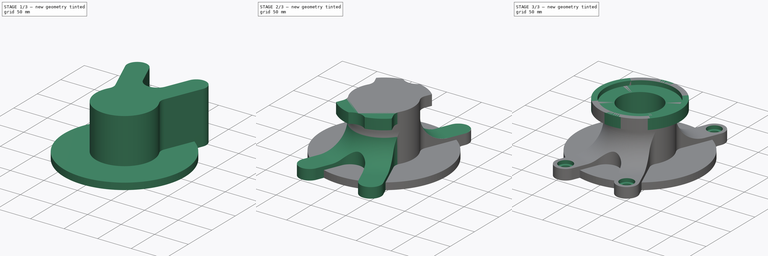
[diagram: build sequence overview — one tinted view per stage of 3, left to right]
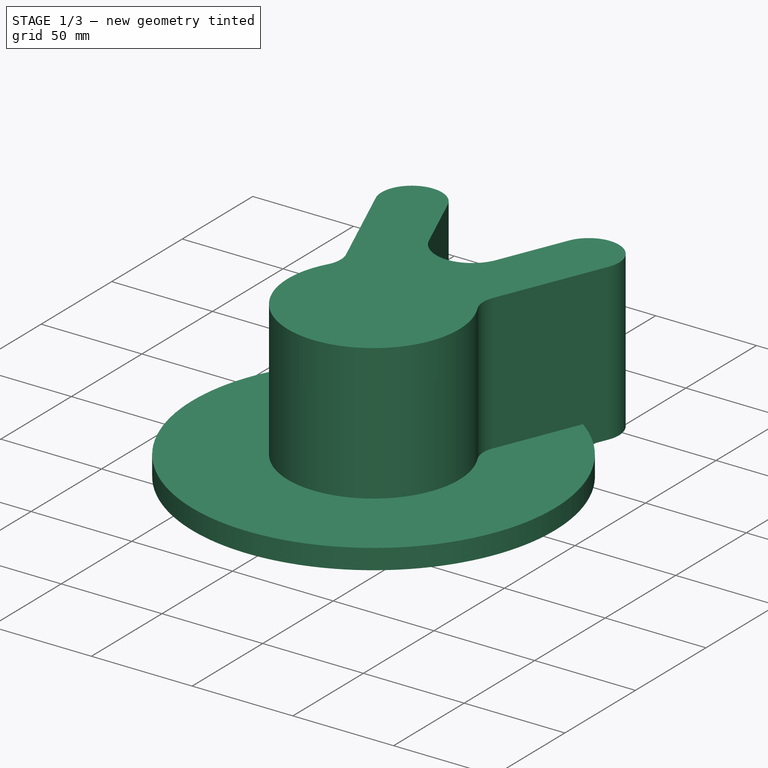
[diagram: stage 1 of 3 — iso view after this stage's code; geometry added in this stage tinted green]
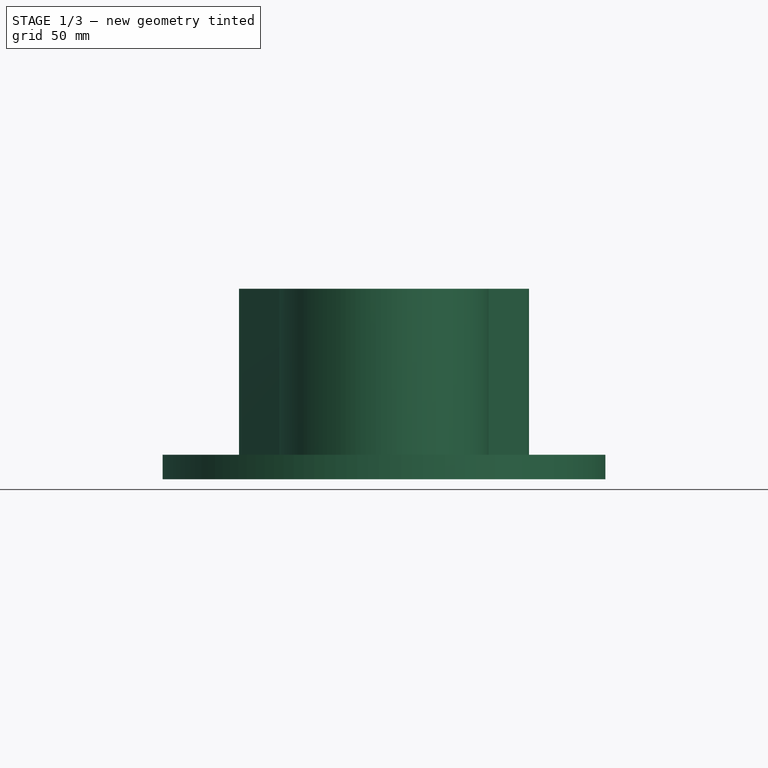
[diagram: stage 1 of 3 — front view after this stage's code; geometry added in this stage tinted green]
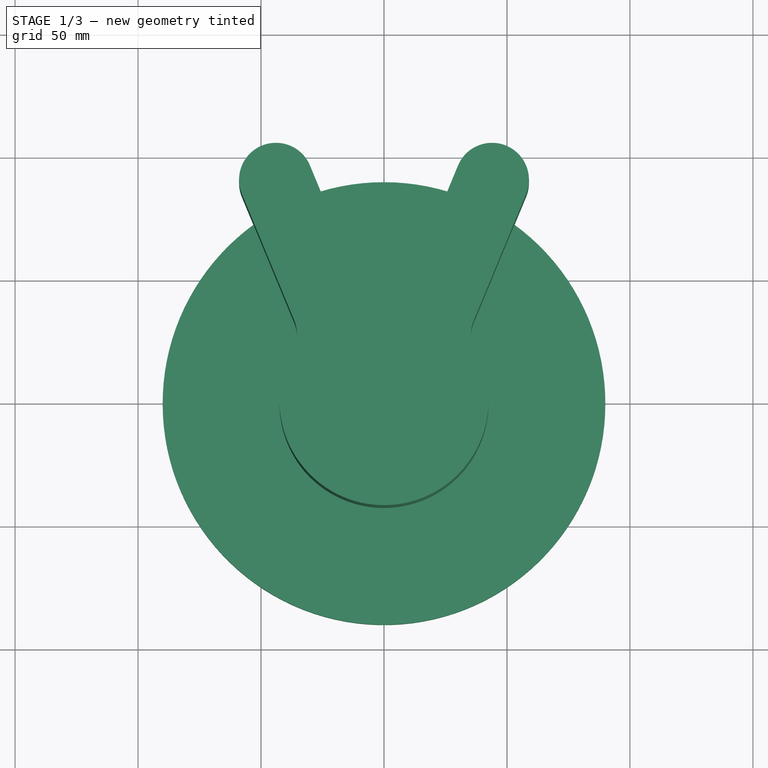
[diagram: stage 1 of 3 — top view after this stage's code; geometry added in this stage tinted green]
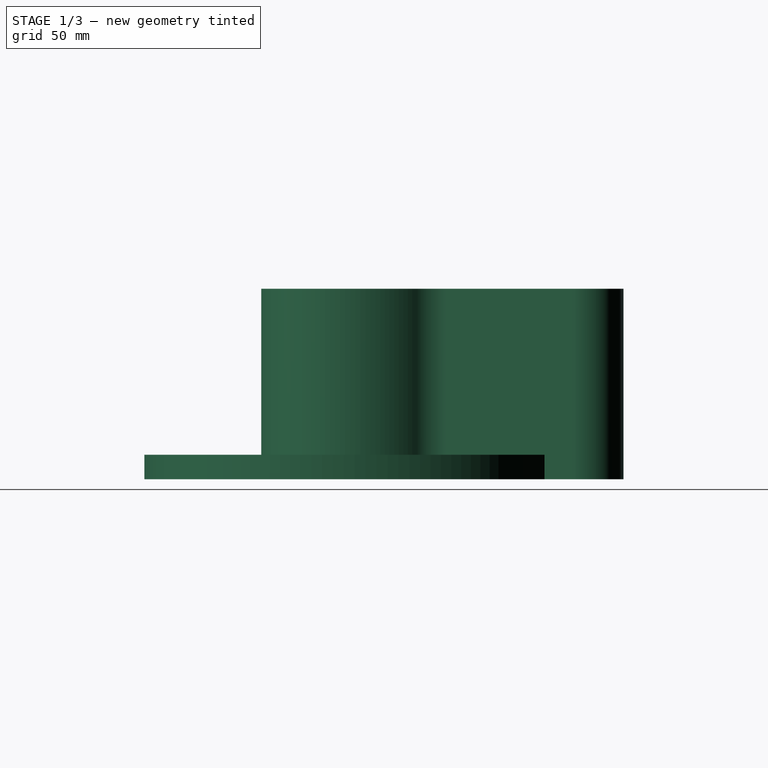
[diagram: stage 1 of 3 — right view after this stage's code; geometry added in this stage tinted green]
FCSTD DOCUMENT  (FreeCAD 1.1R42180 (Git))
Label: 2024-04-15-Reducer
License: Creative Commons Attribution-NonCommercial-ShareAlike 4.0
LicenseURL: https://creativecommons.org/licenses/by-nc-sa/4.0/
objects: Sketcher::SketchObject×4, PartDesign::Pad×4, PartDesign::Hole×2, App::Point×1, PartDesign::Mirrored×1, PartDesign::Groove×1, PartDesign::Body×1
note: 32 computed .brp shape members not serialized (recipe doc carries the construction recipe); baked Part::Feature solids carry a one-line shape summary decoded from their .brp

FEATURE [App::Point] Origin001  label="Origine"
  Role = Origin
FEATURE [Sketcher::SketchObject] Sketch
  ArcFitTolerance = 1e-06
  AttachmentSupport = -> [Origin]
  ExternalTypes = [0]
  FullyConstrained = true
  MakeInternals = false
  MapMode = 5
  sketch-geometry (2):
    g0: Circle CenterX=0 CenterY=0 CenterZ=0 NormalX=0 NormalY=0 NormalZ=1 AngleXU=0 Radius=90
    g1: Circle CenterX=0 CenterY=0 CenterZ=0 NormalX=0 NormalY=0 NormalZ=1 AngleXU=0 Radius=42.5
  constraints (4):
    c: Diameter(g0) = 180
    c: Coincident(g0,g-1)
    c: Diameter(g1) = 85
    c: Coincident(g1,g0)
FEATURE [Sketcher::SketchObject] Sketch001
  ArcFitTolerance = 1e-06
  AttachmentSupport = -> [Origin]
  ExternalTypes = [0]
  FullyConstrained = true
  MakeInternals = false
  MapMode = 5
  expr: Constraints[15] = 85 / 2
  sketch-geometry (10):
    g0: LineSegment StartX=-36.5065 StartY=32.7045 StartZ=0 EndX=-57.7919 EndY=84.092 EndZ=0
    g1: ArcOfCircle CenterX=-43.9337 CenterY=89.8322 CenterZ=0 NormalX=0 NormalY=0 NormalZ=1 AngleXU=0 Radius=15 StartAngle=0.392699 EndAngle=3.53429
    g2: LineSegment StartX=-30.0755 StartY=95.5725 StartZ=0 EndX=-16.6298 EndY=63.1117 EndZ=0
    g3: ArcOfCircle CenterX=0 CenterY=70 CenterZ=0 NormalX=0 NormalY=0 NormalZ=1 AngleXU=0 Radius=18 StartAngle=3.53429 EndAngle=5.89049
    g4: LineSegment StartX=16.6298 StartY=63.1117 StartZ=0 EndX=30.0755 EndY=95.5725 EndZ=0
    g5: ArcOfCircle CenterX=43.9337 CenterY=89.8322 CenterZ=0 NormalX=0 NormalY=0 NormalZ=1 AngleXU=0 Radius=15 StartAngle=5.89049 EndAngle=9.03208
    g6: LineSegment StartX=57.7919 StartY=84.092 StartZ=0 EndX=36.5065 EndY=32.7045 EndZ=0
    g7: ArcOfCircle CenterX=0 CenterY=0 CenterZ=0 NormalX=0 NormalY=0 NormalZ=1 AngleXU=0 Radius=42.5 StartAngle=0.505239 EndAngle=2.63635
    g8: ArcOfCircle CenterX=-49.4408 CenterY=27.3469 CenterZ=0 NormalX=0 NormalY=0 NormalZ=1 AngleXU=0 Radius=14 StartAngle=5.77795 EndAngle=6.67588
    g9: ArcOfCircle CenterX=49.4408 CenterY=27.3469 CenterZ=0 NormalX=0 NormalY=0 NormalZ=1 AngleXU=0 Radius=14 StartAngle=2.74889 EndAngle=3.64683
  constraints (24):
    c: Tangent(g0,g1) = 1.5708
    c: Tangent(g2,g3) = -1.5708
    c: Tangent(g3,g4) = -1.5708
    c: Tangent(g4,g5) = 1.5708
    c: Tangent(g5,g6) = 1.5708
    c: Symmetric(g1,g5,g-2)
    c: Tangent(g1,g2) = 1.5708
    c: Radius(g5) = 15
    c: Equal(g1,g5)
    c: Distance(g-1,g1) = 100
    c: PointOnObject(g3,g-2)
    c: Radius(g3) = 18
    c: Angle(g4,g2) = 0.785398
    c: Distance(g3,g-1) = 70
    c: Coincident(g7,g-1)
    c: Radius(g7) = 42.5
    c: Equal(g9,g8)
    c: Radius(g8) = 14
    c: Parallel(g0,g2)
    c: Tangent(g8,g0) = -1.5708
    c: Tangent(g8,g7) = 1.5708
    c: Parallel(g4,g6)
    c: Tangent(g9,g6) = -1.5708
    c: Tangent(g9,g7) = 1.5708
FEATURE [Sketcher::SketchObject] Sketch002
  ArcFitTolerance = 1e-06
  AttachmentSupport = -> [Origin]
  ExternalTypes = [0]
  FullyConstrained = false
  MakeInternals = false
  MapMode = 5
  Placement = pos=(0,0,0) rot=(1,0,0;1.5708rad)
  expr: Constraints[10] = 85 / 2
  expr: Constraints[21] = 115 / 2
  sketch-geometry (11):
    g0: LineSegment StartX=90 StartY=15 StartZ=0 EndX=80 EndY=15 EndZ=0
    g1: ArcOfCircle CenterX=80 CenterY=52.5 CenterZ=0 NormalX=0 NormalY=0 NormalZ=1 AngleXU=0 Radius=37.5 StartAngle=3.14159 EndAngle=4.71239
    g2: LineSegment StartX=42.5 StartY=52.5 StartZ=0 EndX=42.5 EndY=62.5 EndZ=0
    g3: LineSegment [constr] StartX=90 StartY=48.7831 StartZ=0 EndX=90 EndY=15 EndZ=0
    g4: LineSegment StartX=90 StartY=15 StartZ=0 EndX=150 EndY=15 EndZ=0
    g5: LineSegment StartX=150 StartY=15 StartZ=0 EndX=150 EndY=82.5 EndZ=0
    g6: LineSegment [constr] StartX=90 StartY=62.5 StartZ=0 EndX=90 EndY=15 EndZ=0
    g7: LineSegment StartX=150 StartY=82.5 StartZ=0 EndX=57.5 EndY=82.5 EndZ=0
    g8: LineSegment StartX=57.5 StartY=82.5 StartZ=0 EndX=57.5 EndY=62.5 EndZ=0
    g9: LineSegment [constr] StartX=57.5 StartY=62.5 StartZ=0 EndX=90 EndY=62.5 EndZ=0
    g10: LineSegment StartX=42.5 StartY=62.5 StartZ=0 EndX=57.5 EndY=62.5 EndZ=0
  constraints (28):
    c: Tangent(g0,g1) = 1.5708
    c: Tangent(g1,g2) = 1.5708
    c: Coincident(g3,g0)
    c: Vertical(g3)
    c: Horizontal(g0)
    c: Vertical(g2)
    c: Radius(g1) = 37.5
    c: Vertical(g3,g-3)
    c: DistanceY(g-1,g0) = 15
    c: DistanceY(g2,g2) = 10
    c: Distance(g2,g-2) = 42.5
    c: Coincident(g4,g5)
    c: Coincident(g6,g4)
    c: Horizontal(g4)
    c: Vertical(g5)
    c: Coincident(g4,g0)
    c: Coincident(g7,g8)
    c: Coincident(g8,g9)
    c: Vertical(g8)
    c: Horizontal(g7)
    c: Horizontal(g9)
    c: Distance(g7,g-2) = 57.5
    c: DistanceY(g9,g7) = 20
    c: DistanceX(g4,g4) = 60
    c: Coincident(g10,g2)
    c: Coincident(g10,g8)
    c: Coincident(g5,g7)
    c: Horizontal(g10)
FEATURE [PartDesign::Pad] Pad
  Direction = (0,0,1)
  Length = 77.5
  Length2 = 10
  Profile = -> Sketch [Edge2]
  ReferenceAxis = -> Sketch [N_Axis]
  Refine = true
  Suppressed = false
  Type = 0
FEATURE [PartDesign::Pad] Pad002
  BaseFeature = -> Pad
  Direction = (0,0,1)
  Length = 10
  Length2 = 10
  Profile = -> Sketch [Edge1]
  ReferenceAxis = -> Sketch [N_Axis]
  Refine = true
  Suppressed = false
  Type = 0
FEATURE [PartDesign::Pad] Pad001
  BaseFeature = -> Pad002
  Direction = (0,0,1)
  Length = 77.5
  Length2 = 10
  Profile = -> Sketch001
  ReferenceAxis = -> Sketch001 [N_Axis]
  Refine = true
  Suppressed = false
  Type = 3
  UpToFace = -> Pad002 [Face4]
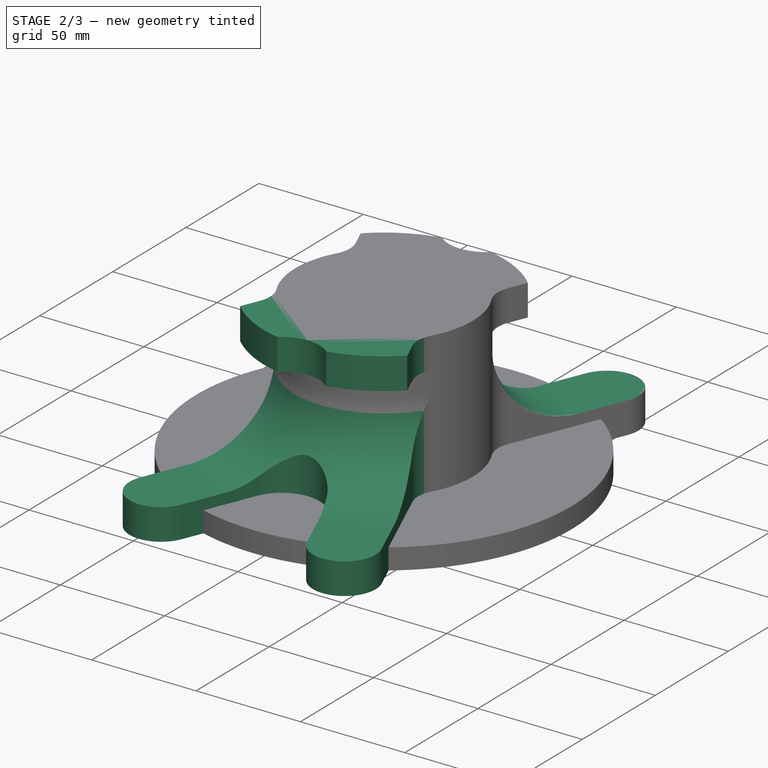
[diagram: stage 2 of 3 — iso view after this stage's code; geometry added in this stage tinted green]
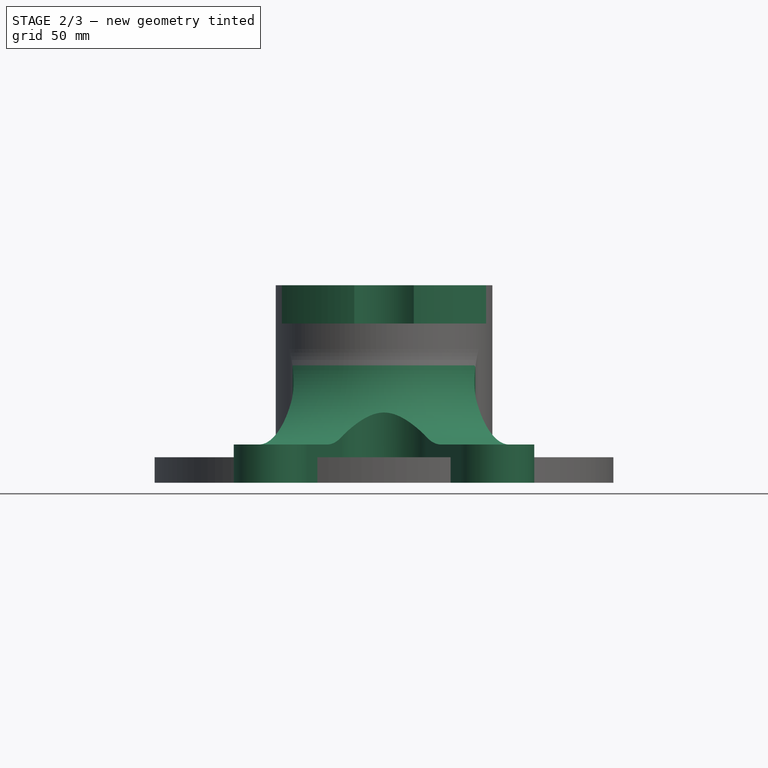
[diagram: stage 2 of 3 — front view after this stage's code; geometry added in this stage tinted green]
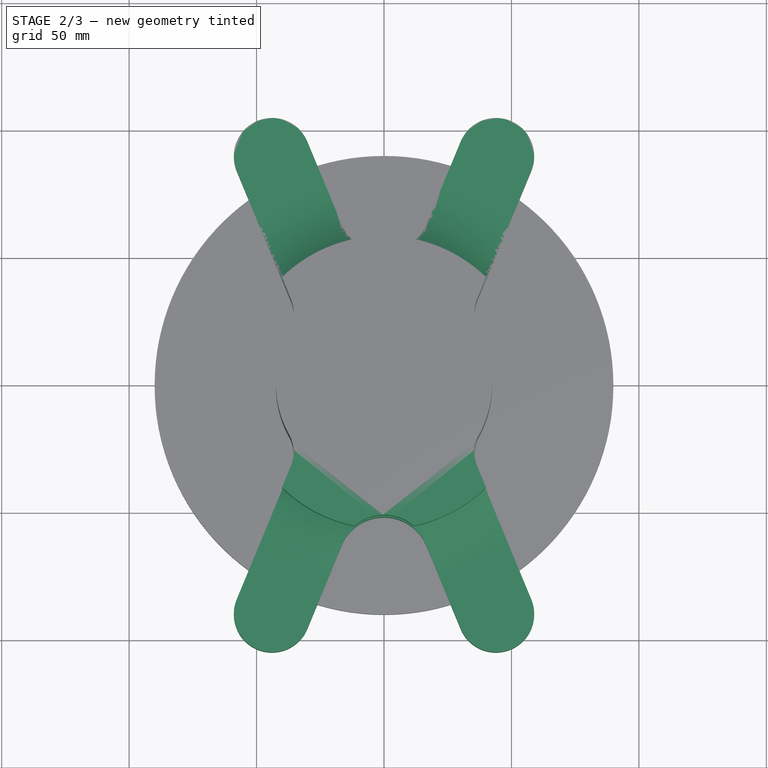
[diagram: stage 2 of 3 — top view after this stage's code; geometry added in this stage tinted green]
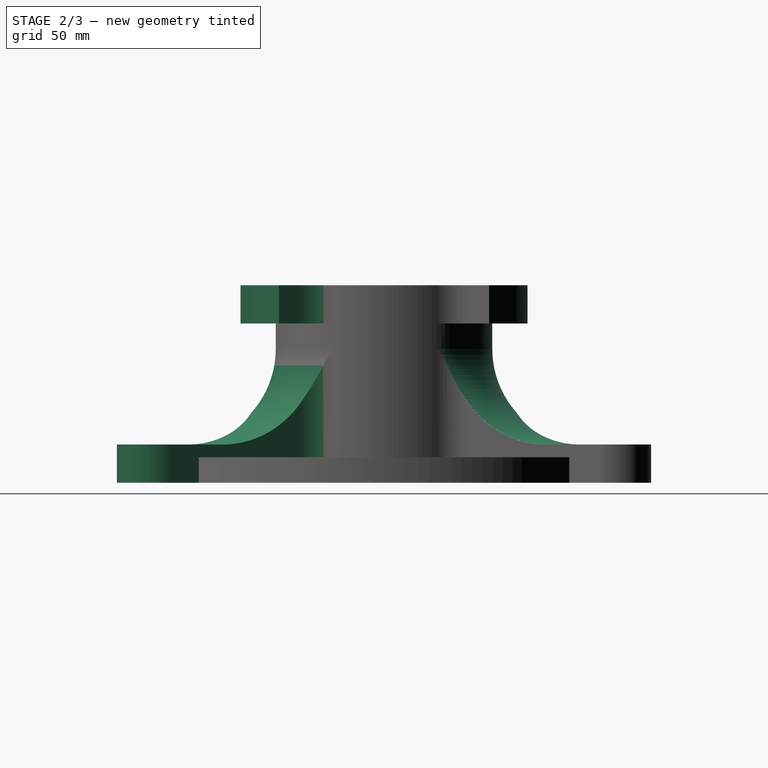
[diagram: stage 2 of 3 — right view after this stage's code; geometry added in this stage tinted green]
FEATURE [PartDesign::Mirrored] Mirrored
  BaseFeature = -> Pad001
  MirrorPlane = -> XZ_Plane
  Originals = -> [Pad001]
  Refine = true
  Suppressed = false
  TransformMode = 0
FEATURE [PartDesign::Groove] Groove
  Angle = 360
  Angle2 = 60
  Axis = (0,2e-16,1)
  Base = (0,0,0)
  BaseFeature = -> Mirrored
  Profile = -> Sketch002
  ReferenceAxis = -> Sketch002 [V_Axis]
  Refine = true
  Suppressed = false
  Type = 0
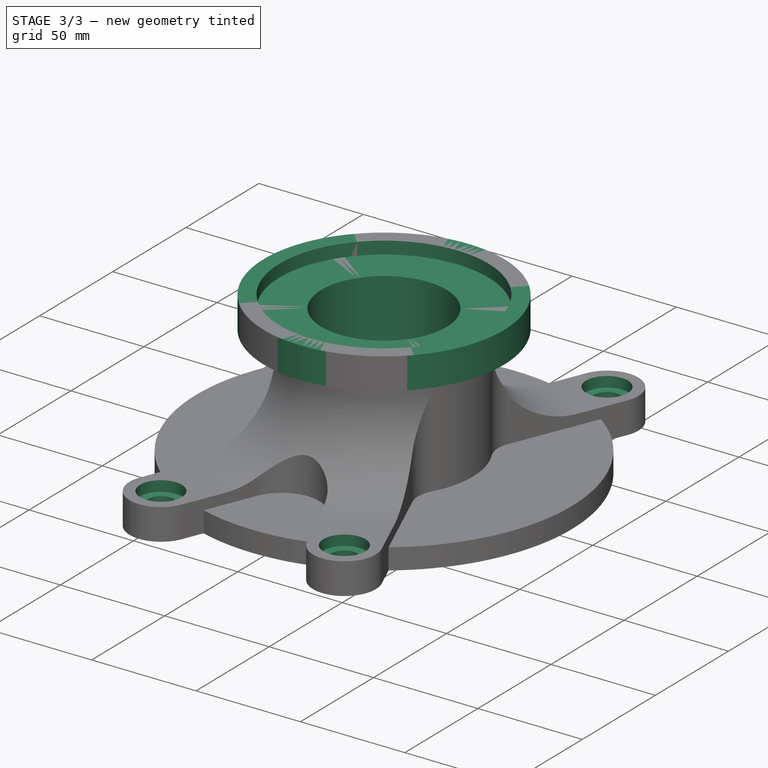
[diagram: stage 3 of 3 — iso view after this stage's code; geometry added in this stage tinted green]
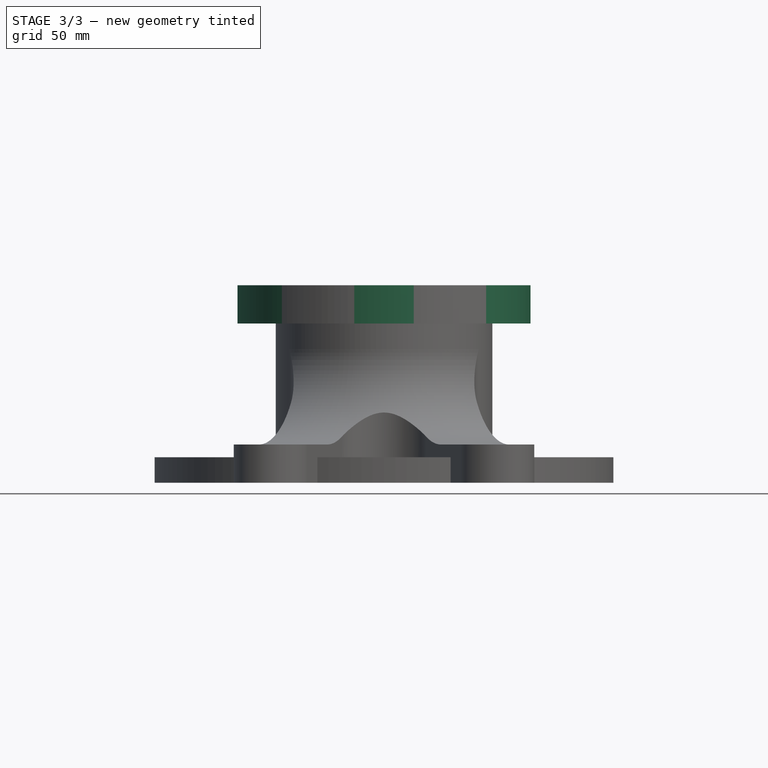
[diagram: stage 3 of 3 — front view after this stage's code; geometry added in this stage tinted green]
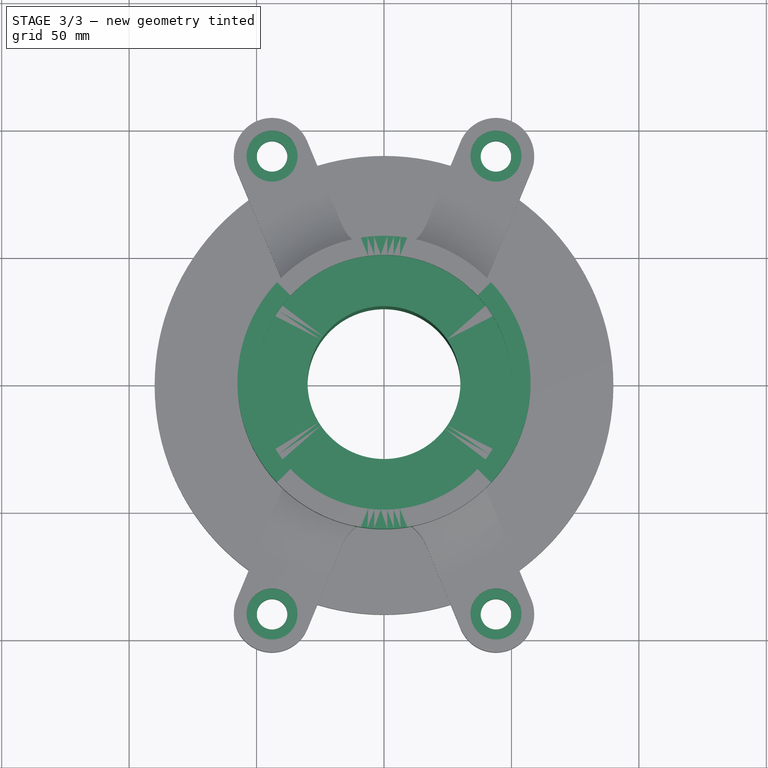
[diagram: stage 3 of 3 — top view after this stage's code; geometry added in this stage tinted green]
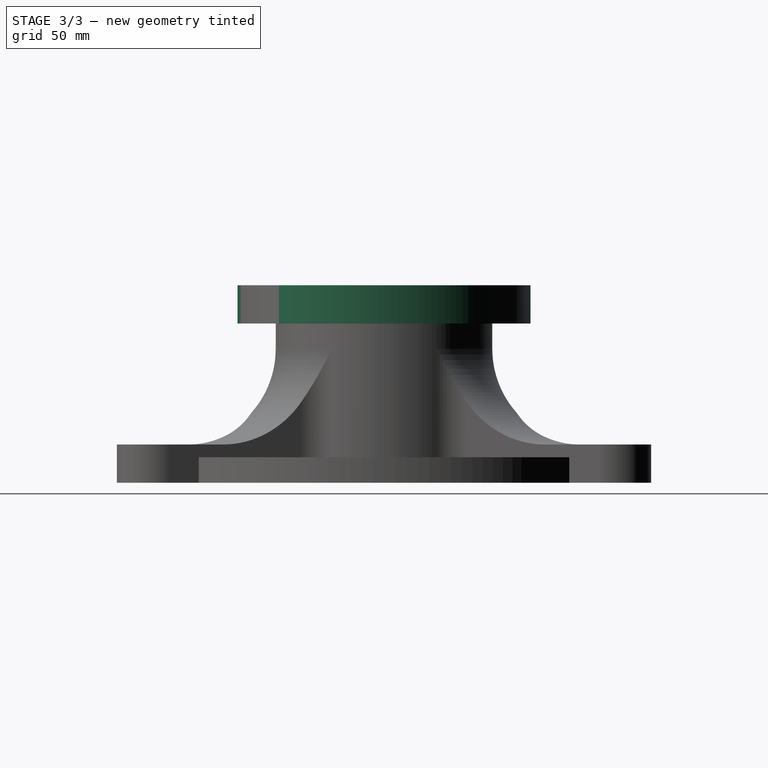
[diagram: stage 3 of 3 — right view after this stage's code; geometry added in this stage tinted green]
FEATURE [Sketcher::SketchObject] Sketch003
  ArcFitTolerance = 1e-06
  AttachmentSupport = -> [Groove]
  ExternalTypes = [0]
  FullyConstrained = true
  MakeInternals = false
  MapMode = 5
  Placement = pos=(0,0,77.5) rot=(0,0,1;0rad)
  sketch-geometry (1):
    g0: Circle CenterX=0 CenterY=0 CenterZ=0 NormalX=0 NormalY=0 NormalZ=1 AngleXU=0 Radius=57.5
  constraints (2):
    c: Diameter(g0) = 115
    c: Coincident(g0,g-1)
FEATURE [PartDesign::Pad] Pad003
  BaseFeature = -> Groove
  Direction = (0,0,1)
  Length = 15
  Length2 = 10
  Profile = -> Sketch003
  ReferenceAxis = -> Sketch003 [N_Axis]
  Refine = true
  Reversed = true
  Suppressed = false
  Type = 0
FEATURE [PartDesign::Hole] Hole
  BaseFeature = -> Pad003
  BaseProfileType = 7
  CustomThreadClearance = 0
  Depth = 579.718
  DepthType = 1
  Diameter = 60
  DrillForDepth = false
  DrillPoint = 1
  DrillPointAngle = 118
  HoleCutCountersinkAngle = 90
  HoleCutCustomValues = false
  HoleCutDepth = 6
  HoleCutDiameter = 100
  HoleCutType = 1
  ModelThread = false
  Profile = -> Pad003 [Face1]
  Refine = true
  Suppressed = false
  Tapered = false
  TaperedAngle = 90
  ThreadClass = 0
  ThreadDepth = 579.718
  ThreadDepthType = 0
  ThreadDiameter = 60
  ThreadDirection = 0
  ThreadFit = 0
  ThreadSize = 0
  ThreadType = 0
  Threaded = false
  UseCustomThreadClearance = false
FEATURE [PartDesign::Hole] Hole001
  BaseFeature = -> Hole
  BaseProfileType = 7
  CustomThreadClearance = 0
  Depth = 579.718
  DepthType = 1
  Diameter = 12
  DrillForDepth = false
  DrillPoint = 1
  DrillPointAngle = 118
  HoleCutCountersinkAngle = 90
  HoleCutCustomValues = false
  HoleCutDepth = 5
  HoleCutDiameter = 20
  HoleCutType = 1
  ModelThread = false
  Profile = -> Hole [Edge130,Edge118,Edge99,Edge111]
  Refine = true
  Suppressed = false
  Tapered = false
  TaperedAngle = 90
  ThreadClass = 0
  ThreadDepth = 579.718
  ThreadDepthType = 0
  ThreadDiameter = 12
  ThreadDirection = 0
  ThreadFit = 0
  ThreadSize = 0
  ThreadType = 0
  Threaded = false
  UseCustomThreadClearance = false
FEATURE [PartDesign::Body] Body
  AllowCompound = true
  Group = -> [Pad,Pad002,Sketch,Sketch001,Pad001,Mirrored,Sketch002,Groove,Sketch003,Pad003,Hole,Hole001]
  Origin = -> Origin
  Tip = -> Hole001
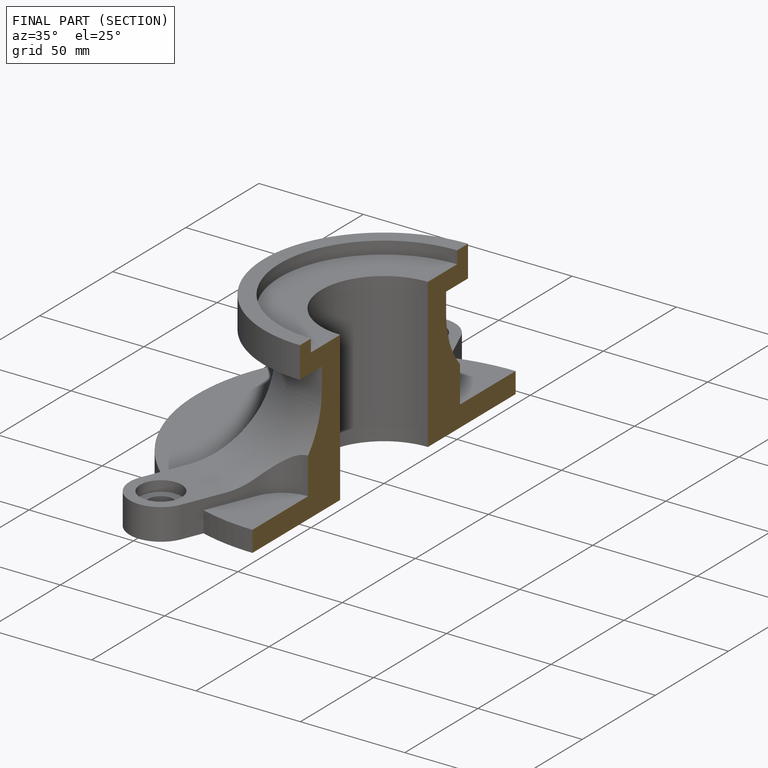
[diagram: finished part — half-section view (interior)]
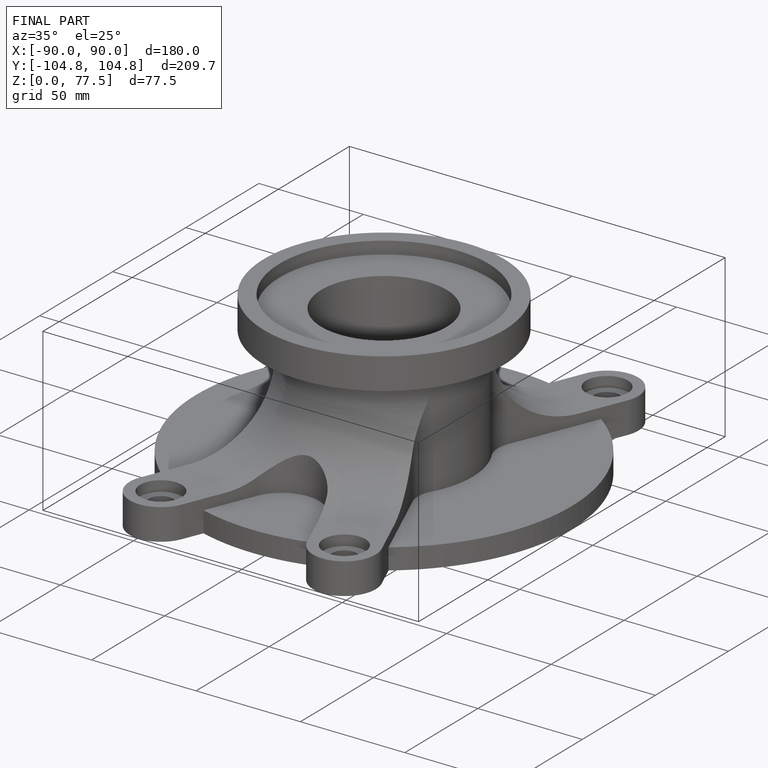
[diagram: finished part — iso view with bounding-box wireframe]
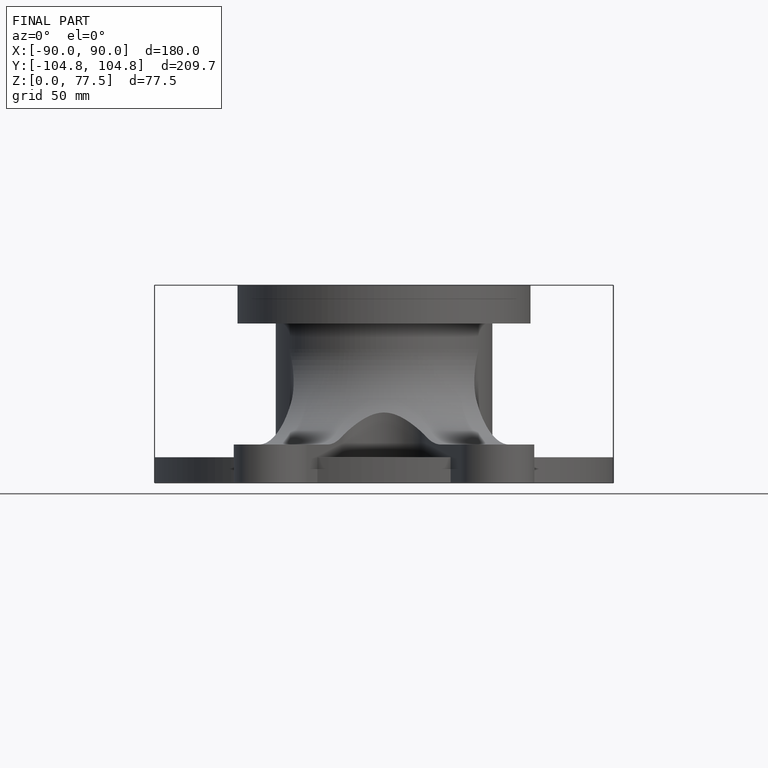
[diagram: finished part — front view with bounding-box wireframe]
